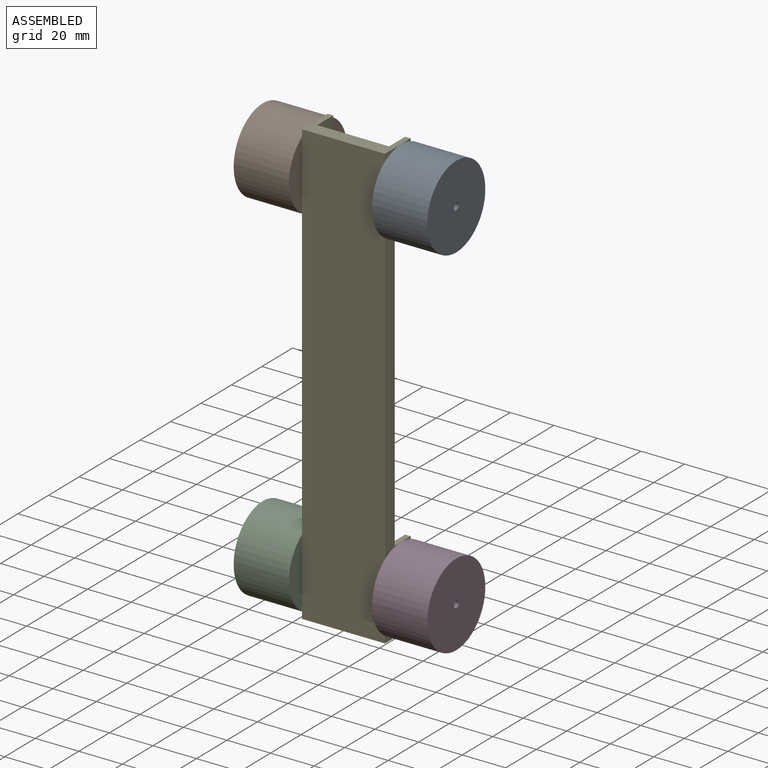
[diagram: assembled view]
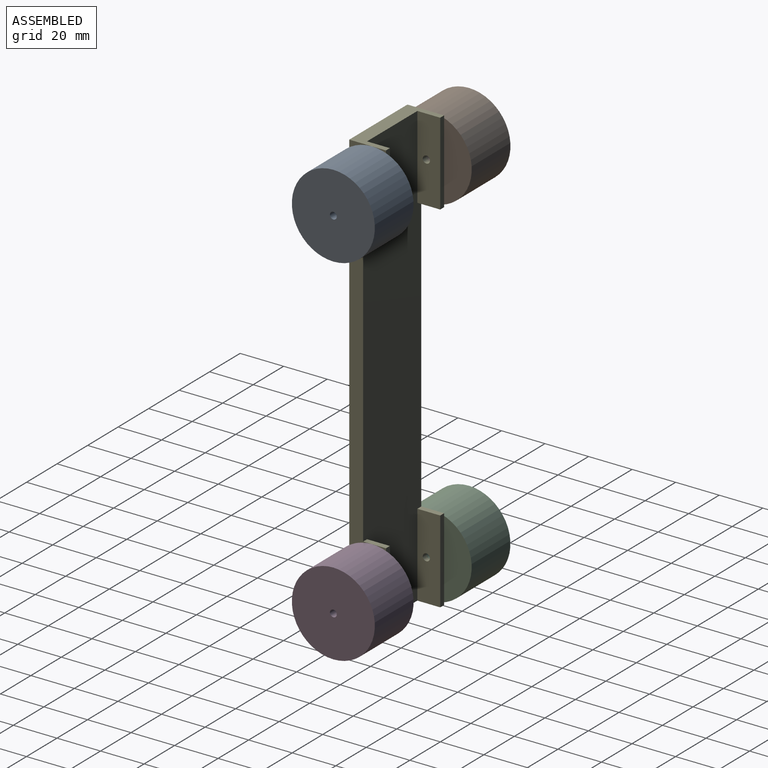
[diagram: assembled view, second angle]
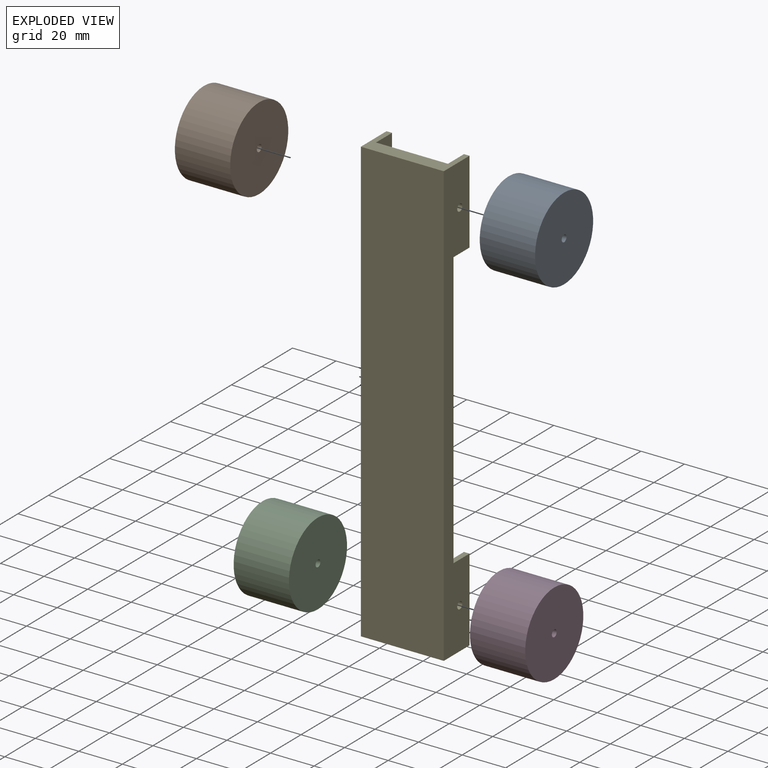
[diagram: exploded view]
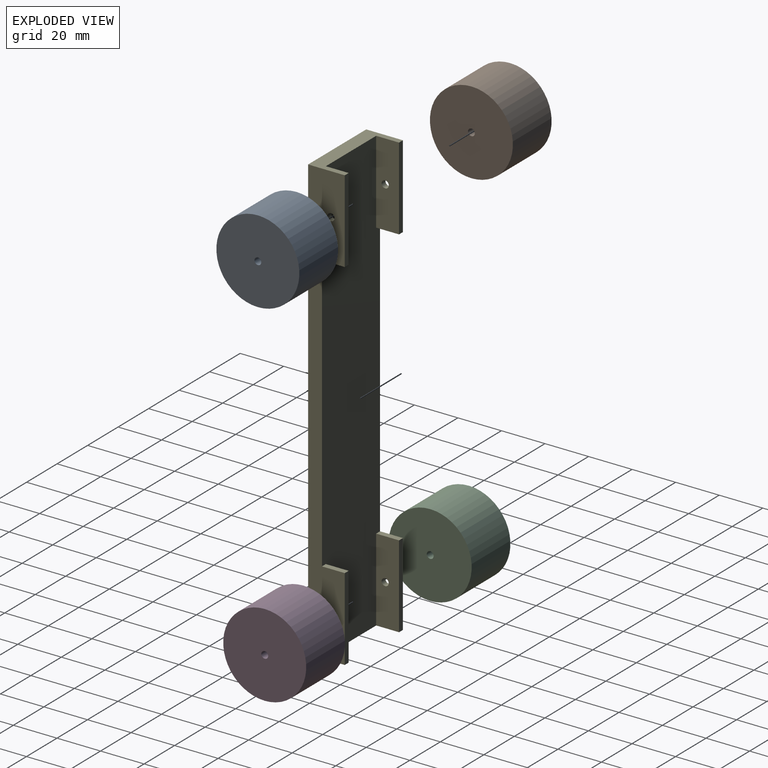
[diagram: exploded view, second angle]
ASSEMBLY  parts=5 mates=4
PART A: 4 faces, bbox 25.4x38.1x38.1 mm
  f0: cylinder r=1.57mm len=25.4mm, axis (-1,0,0), area 251.3mm2, adj f2,f3
  f1: cylinder r=19.05mm len=38.1mm, axis (-1,0,0), area 3040.2mm2, adj f2,f3
  f2: plane 38.1x38.1mm, normal (1,0,0), area 1132.3mm2, adj f0,f1
  f3: plane 38.1x38.1mm, normal (-1,0,0), area 1132.3mm2, adj f0,f1
PART B: same geometry as A
PART C: same geometry as A
PART D: same geometry as A
PART E: 22 faces, bbox 38.1x203.2x16.9 mm
  f0: plane 203.2x38.1mm, normal (0,0,1), area 7354.8mm2, adj f1,f2,f3,f4,f8,f9,f10,f13
  f1: plane 38.1x16.86mm, normal (0,-1,0), area 295.3mm2, adj f0,f2,f4,f5,f6,f9,f11,f13
  f2: plane 203.2x16.86mm, normal (1,0,0), area 2073.7mm2, adj f0,f1,f3,f5,f10,f11,f12,f14
  f3: plane 38.1x16.84mm, normal (0,1,0), area 295.2mm2, adj f0,f2,f4,f5,f14,f17,f19,f21
  f4: plane 203.2x16.84mm, normal (-1,0,0), area 2072.5mm2, adj f0,f1,f3,f5,f6,f7,f8,f18
  f5: plane 203.2x38.1mm, normal (0,0,-1), area 7741.9mm2, adj f1,f2,f3,f4
  f6: plane 38.1x2.54mm, normal (0,0,1), area 96.8mm2, adj f1,f4,f8,f9
  f7: cylinder r=1.65mm len=3.3mm, axis (-1,0,0), area 26.3mm2, adj f4,f9
  f8: plane 10.49x2.54mm, normal (0,1,0), area 26.6mm2, adj f0,f4,f6,f9
  f9: plane 38.1x10.49mm, normal (1,0,0), area 391.1mm2, adj f0,f1,f6,f7,f8
  f10: plane 10.51x2.54mm, normal (0,1,0), area 26.7mm2, adj f0,f2,f11,f13
  f11: plane 38.12x2.54mm, normal (0,0,1), area 96.8mm2, adj f1,f2,f10,f13
  f12: cylinder r=1.62mm len=3.25mm, axis (1,0,0), area 25.9mm2, adj f2,f13
  f13: plane 38.12x10.51mm, normal (-1,0,0), area 392.3mm2, adj f0,f1,f10,f11,f12
  f14: plane 38.1x2.54mm, normal (0,0,1), area 96.8mm2, adj f2,f3,f16,f17
  f15: cylinder r=1.65mm len=3.3mm, axis (1,0,0), area 26.3mm2, adj f2,f17
  f16: plane 10.49x2.54mm, normal (0,-1,0), area 26.6mm2, adj f0,f2,f14,f17
  f17: plane 38.1x10.49mm, normal (-1,0,0), area 391.1mm2, adj f0,f3,f14,f15,f16
  f18: plane 10.49x2.54mm, normal (0,-1,0), area 26.6mm2, adj f0,f4,f19,f21
  f19: plane 38.1x2.54mm, normal (0,0,1), area 96.8mm2, adj f3,f4,f18,f21
  f20: cylinder r=1.65mm len=3.31mm, axis (-1,0,0), area 26.4mm2, adj f4,f21
  f21: plane 38.1x10.49mm, normal (1,0,0), area 391.1mm2, adj f0,f3,f18,f19,f20
PLACE A t=(63.5,-9.47,162.54)mm
PLACE B t=(0,-9.44,162.56)mm
PLACE C t=(0,-9.47,-2.53)mm
PLACE D t=(63.5,-9.47,-2.54)mm
PLACE E rot(axis=(0,0.71,0.71),180deg) t=(69.33,18.66,58.79)mm
MATE fastened C.f0 <-> E.f12  axis (1,0,0) through (25.4,29.13,29.1)mm
MATE fastened D.f0 <-> E.f7  axis (-1,0,0) through (63.5,29.12,29.09)mm
MATE fastened A.f0 <-> E.f20  axis (-1,0,0) through (63.5,29.13,194.18)mm
MATE fastened B.f0 <-> E.f15  axis (1,0,0) through (25.4,29.15,194.19)mm
